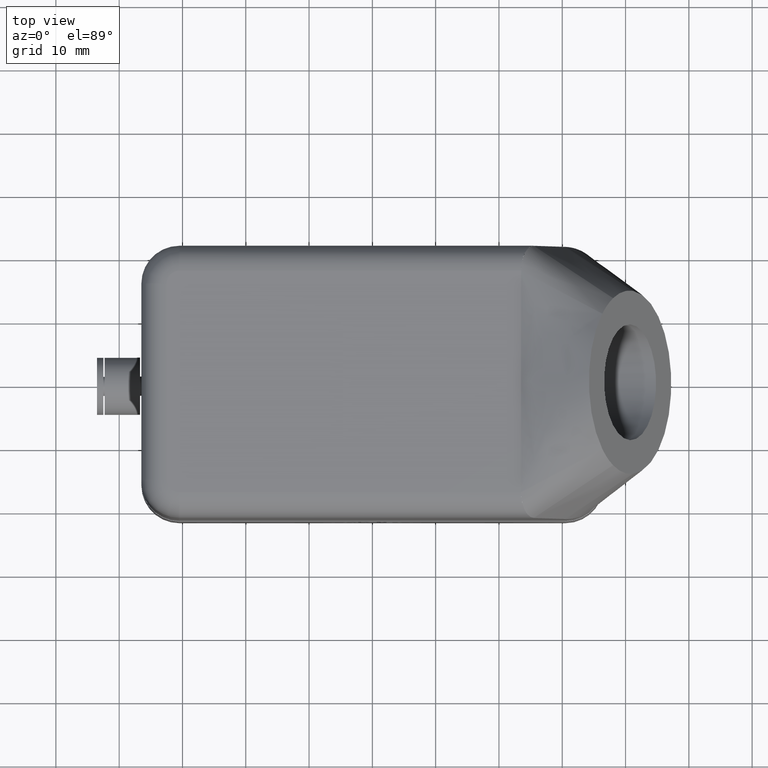
[diagram: clean part render]
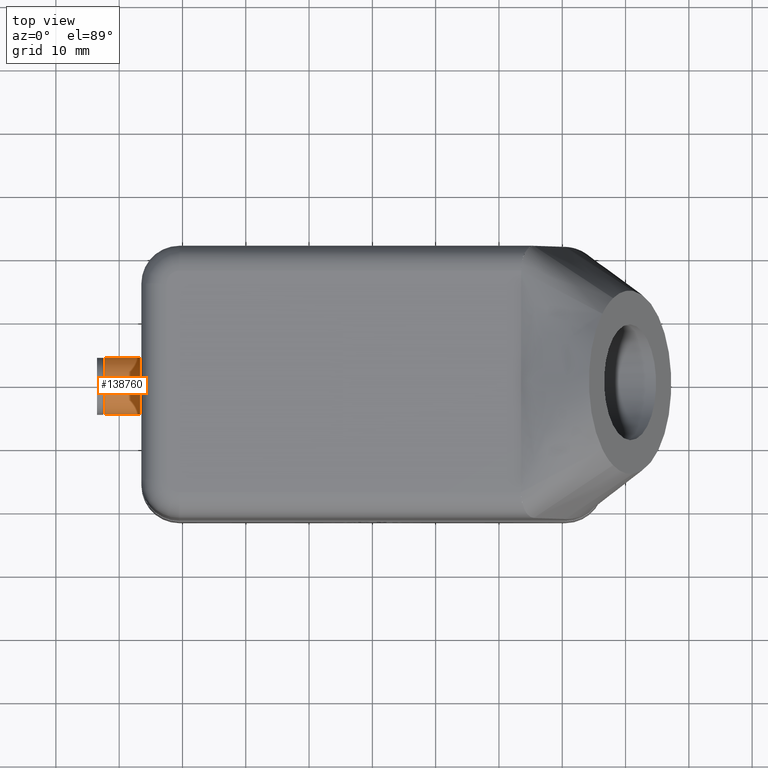
[diagram: same view with one face highlighted and labeled with its STEP entity id]
A machine part, top view. The second image highlights one B-rep face of the part: STEP entity #138760.
In plain terms, the highlighted cylindrical surface (edge-blend (fillet) strip) has radius 4.5 mm, axis along (-1, 0, 0).
Its self-contained STEP definition (entity closure, byte-faithful):
#78210=CARTESIAN_POINT('',(-42.3,2.66453525910038E-15,7.));
#78220=DIRECTION('',(-1.,0.,0.));
#78230=DIRECTION('',(0.,1.,0.));
#78240=AXIS2_PLACEMENT_3D('',#78210,#78220,#78230);
#78250=CIRCLE('',#78240,4.5);
#78260=CARTESIAN_POINT('',(-42.3,-4.5,7.));
#78270=VERTEX_POINT('',#78260);
#78280=CARTESIAN_POINT('',(-42.3,4.50000000000001,7.));
#78290=VERTEX_POINT('',#78280);
#78300=EDGE_CURVE('',#78270,#78290,#78250,.T.);
#88440=CARTESIAN_POINT('',(-36.7,-4.5,7.));
#88450=DIRECTION('',(-1.,0.,0.));
#88460=VECTOR('',#88450,1.);
#88470=LINE('',#88440,#88460);
#88480=CARTESIAN_POINT('',(-36.7,-4.5,7.));
#88490=VERTEX_POINT('',#88480);
#88500=EDGE_CURVE('',#88490,#78270,#88470,.T.);
#88520=CARTESIAN_POINT('',(-36.7,2.66453525910038E-15,7.));
#88530=DIRECTION('',(-1.,0.,0.));
#88540=DIRECTION('',(0.,1.,0.));
#88550=AXIS2_PLACEMENT_3D('',#88520,#88530,#88540);
#88560=CIRCLE('',#88550,4.5);
#88570=CARTESIAN_POINT('',(-36.7,4.50000000000001,7.));
#88580=VERTEX_POINT('',#88570);
#88610=CARTESIAN_POINT('',(-36.7,4.50000000000001,7.));
#88620=DIRECTION('',(-1.,0.,0.));
#88630=VECTOR('',#88620,1.);
#88640=LINE('',#88610,#88630);
#88650=EDGE_CURVE('',#88580,#78290,#88640,.T.);
#130500=CARTESIAN_POINT('',(-36.7,4.49979118840685,7.04335044101351));
#130510=VERTEX_POINT('',#130500);
#130520=EDGE_CURVE('',#130510,#88580,#88560,.T.);
#130550=EDGE_CURVE('',#88490,#130510,#88560,.T.);
#138640=CARTESIAN_POINT('',(-36.7,2.66453525910038E-15,7.));
#138650=DIRECTION('',(-1.,0.,0.));
#138660=DIRECTION('',(0.,1.,0.));
#138670=AXIS2_PLACEMENT_3D('',#138640,#138650,#138660);
#138680=CYLINDRICAL_SURFACE('',#138670,4.5);
#138690=ORIENTED_EDGE('',*,*,#88500,.F.);
#138700=ORIENTED_EDGE('',*,*,#78300,.F.);
#138710=ORIENTED_EDGE('',*,*,#88650,.T.);
#138720=ORIENTED_EDGE('',*,*,#130520,.T.);
#138730=ORIENTED_EDGE('',*,*,#130550,.T.);
#138740=EDGE_LOOP('',(#138730,#138720,#138710,#138700,#138690));
#138750=FACE_OUTER_BOUND('',#138740,.T.);
#138760=ADVANCED_FACE('',(#138750),#138680,.T.);